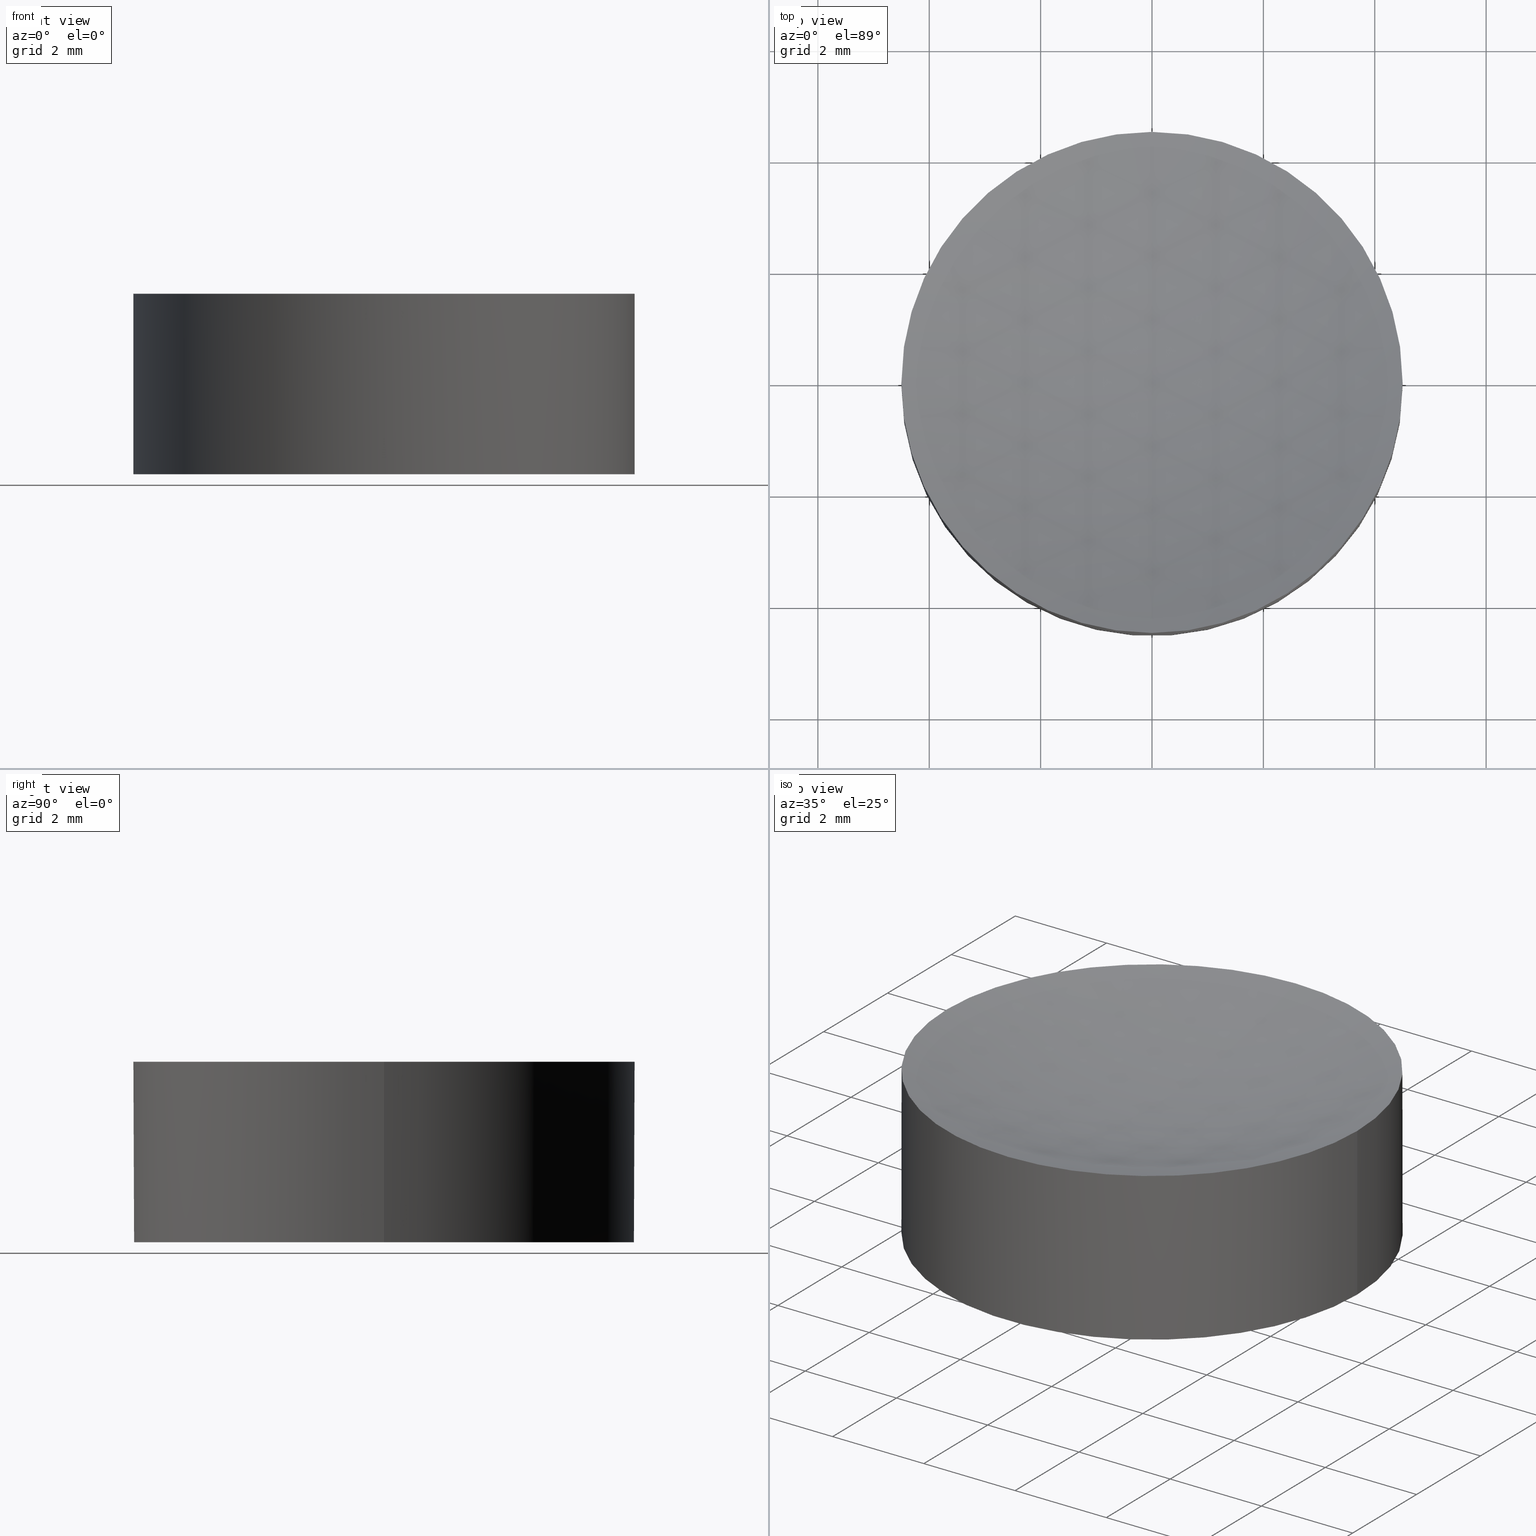
[diagram: canonical four-view strip — front | top / right | iso, engineering-drawing reading convention]
A machine part, canonical four-view strip (front | top / right | iso — engineering-drawing reading convention). The complete STEP part file that produces these views, byte-faithful:
ISO-10303-21;
HEADER;
FILE_DESCRIPTION (( 'STEP AP214' ),
    '1' );
FILE_NAME ('3427-E0W.STEP',
    '2009-12-23T16:30:17',
    ( 'Admin' ),
    ( 'Thorlabs, Inc.' ),
    'SwSTEP 2.0',
    'SolidWorks 2009',
    '' );
FILE_SCHEMA (( 'AUTOMOTIVE_DESIGN' ));
ENDSEC;

DATA;
#1 = DIRECTION ( 'NONE',  ( -0.0000000000000000000, -0.0000000000000000000, 1.000000000000000000 ) ) ;
#2 = DIRECTION ( 'NONE',  ( 1.000000000000000000, 0.0000000000000000000, 0.0000000000000000000 ) ) ;
#3 = MECHANICAL_DESIGN_GEOMETRIC_PRESENTATION_REPRESENTATION (  '', ( #5 ), #68 ) ;
#4 = PRESENTATION_LAYER_ASSIGNMENT (  '', '', ( #5 ) ) ;
#5 = STYLED_ITEM ( 'NONE', ( #6 ), #29 ) ;
#6 = PRESENTATION_STYLE_ASSIGNMENT (( #7 ) ) ;
#7 = SURFACE_STYLE_USAGE ( .BOTH. , #8 ) ;
#8 = SURFACE_SIDE_STYLE ('',( #9 ) ) ;
#9 = SURFACE_STYLE_FILL_AREA ( #10 ) ;
#10 = FILL_AREA_STYLE ('',( #54 ) ) ;
#11 = COLOUR_RGB ( '',1.000000000000000000, 1.000000000000000000, 1.000000000000000000 ) ;
#12 = FACE_OUTER_BOUND ( 'NONE', #30, .T. ) ;
#13 = DIRECTION ( 'NONE',  ( -1.224606353822377300E-016, -1.000000000000000000, 0.0000000000000000000 ) ) ;
#14 = DIRECTION ( 'NONE',  ( -1.000000000000000000, 1.224606353822377300E-016, 0.0000000000000000000 ) ) ;
#15 = CARTESIAN_POINT ( 'NONE',  ( 0.0000000000000000000, 0.0000000000000000000, 0.6007874015748031500 ) ) ;
#16 = AXIS2_PLACEMENT_3D ( 'NONE', #15, #14, #13 ) ;
#17 = ADVANCED_FACE ( 'NONE', ( #91 ), #59, .T. ) ;
#18 = EDGE_LOOP ( 'NONE', ( #19, #20, #21, #22, #23 ) ) ;
#19 = ORIENTED_EDGE ( 'NONE', *, *, #101, .F. ) ;
#20 = ORIENTED_EDGE ( 'NONE', *, *, #47, .T. ) ;
#21 = ORIENTED_EDGE ( 'NONE', *, *, #92, .T. ) ;
#22 = ORIENTED_EDGE ( 'NONE', *, *, #37, .F. ) ;
#23 = ORIENTED_EDGE ( 'NONE', *, *, #42, .F. ) ;
#24 = CLOSED_SHELL ( 'NONE', ( #104, #38, #29, #43, #17 ) ) ;
#25 = ORIENTED_EDGE ( 'NONE', *, *, #35, .T. ) ;
#26 = EDGE_CURVE ( 'NONE', #36, #32, #53, .T. ) ;
#27 = ORIENTED_EDGE ( 'NONE', *, *, #37, .T. ) ;
#28 = ORIENTED_EDGE ( 'NONE', *, *, #51, .T. ) ;
#29 = ADVANCED_FACE ( 'NONE', ( #12 ), #67, .F. ) ;
#30 = EDGE_LOOP ( 'NONE', ( #31, #25, #40, #41 ) ) ;
#31 = ORIENTED_EDGE ( 'NONE', *, *, #26, .F. ) ;
#32 = VERTEX_POINT ( 'NONE', #133 ) ;
#33 = ORIENTED_EDGE ( 'NONE', *, *, #35, .F. ) ;
#34 = ORIENTED_EDGE ( 'NONE', *, *, #26, .T. ) ;
#35 = EDGE_CURVE ( 'NONE', #36, #94, #162, .T. ) ;
#36 = VERTEX_POINT ( 'NONE', #145 ) ;
#37 = EDGE_CURVE ( 'NONE', #32, #50, #126, .T. ) ;
#38 = ADVANCED_FACE ( 'NONE', ( #119 ), #158, .F. ) ;
#39 = EDGE_LOOP ( 'NONE', ( #33, #34, #27, #28 ) ) ;
#40 = ORIENTED_EDGE ( 'NONE', *, *, #48, .T. ) ;
#41 = ORIENTED_EDGE ( 'NONE', *, *, #42, .T. ) ;
#42 = EDGE_CURVE ( 'NONE', #102, #32, #115, .T. ) ;
#43 = ADVANCED_FACE ( 'NONE', ( #110 ), #168, .F. ) ;
#44 = EDGE_LOOP ( 'NONE', ( #45, #46 ) ) ;
#45 = ORIENTED_EDGE ( 'NONE', *, *, #96, .F. ) ;
#46 = ORIENTED_EDGE ( 'NONE', *, *, #47, .F. ) ;
#47 = EDGE_CURVE ( 'NONE', #98, #97, #167, .T. ) ;
#48 = EDGE_CURVE ( 'NONE', #94, #102, #151, .T. ) ;
#49 = ORIENTED_EDGE ( 'NONE', *, *, #51, .F. ) ;
#50 = VERTEX_POINT ( 'NONE', #182 ) ;
#51 = EDGE_CURVE ( 'NONE', #50, #94, #181, .T. ) ;
#52 = ORIENTED_EDGE ( 'NONE', *, *, #92, .F. ) ;
#53 = CIRCLE ( 'NONE', #16, 0.5515748031496062700 ) ;
#54 = FILL_AREA_STYLE_COLOUR ( '', #11 ) ;
#55 = DIRECTION ( 'NONE',  ( 1.000000000000000000, 0.0000000000000000000, 0.0000000000000000000 ) ) ;
#56 = DIRECTION ( 'NONE',  ( -0.0000000000000000000, -0.0000000000000000000, 1.000000000000000000 ) ) ;
#57 = CARTESIAN_POINT ( 'NONE',  ( 0.0000000000000000000, 0.0000000000000000000, 0.3550060342688710600 ) ) ;
#58 = AXIS2_PLACEMENT_3D ( 'NONE', #57, #56, #55 ) ;
#59 = CYLINDRICAL_SURFACE ( 'NONE', #58, 0.1771653543307086800 ) ;
#60 =( GEOMETRIC_REPRESENTATION_CONTEXT ( 3 ) GLOBAL_UNCERTAINTY_ASSIGNED_CONTEXT ( ( #61 ) ) GLOBAL_UNIT_ASSIGNED_CONTEXT ( ( #77, #76, #62 ) ) REPRESENTATION_CONTEXT ( 'NONE', 'WORKASPACE' ) );
#61 = UNCERTAINTY_MEASURE_WITH_UNIT (LENGTH_MEASURE( 1.000000000000000100E-005 ), #77, 'distance_accuracy_value', 'NONE');
#62 =( NAMED_UNIT ( * ) SI_UNIT ( $, .STERADIAN. ) SOLID_ANGLE_UNIT ( ) );
#63 = DIRECTION ( 'NONE',  ( 0.0000000000000000000, 1.000000000000000000, 0.0000000000000000000 ) ) ;
#64 = DIRECTION ( 'NONE',  ( -1.000000000000000000, 0.0000000000000000000, 0.0000000000000000000 ) ) ;
#65 = CARTESIAN_POINT ( 'NONE',  ( 0.0000000000000000000, 0.0000000000000000000, 0.6007874015748031500 ) ) ;
#66 = AXIS2_PLACEMENT_3D ( 'NONE', #65, #64, #63 ) ;
#67 = SPHERICAL_SURFACE ( 'NONE', #66, 0.5515748031496062700 ) ;
#68 =( GEOMETRIC_REPRESENTATION_CONTEXT ( 3 ) GLOBAL_UNCERTAINTY_ASSIGNED_CONTEXT ( ( #69 ) ) GLOBAL_UNIT_ASSIGNED_CONTEXT ( ( #72, #71, #70 ) ) REPRESENTATION_CONTEXT ( 'NONE', 'WORKASPACE' ) );
#69 = UNCERTAINTY_MEASURE_WITH_UNIT (LENGTH_MEASURE( 1.000000000000000100E-005 ), #72, 'distance_accuracy_value', 'NONE');
#70 =( NAMED_UNIT ( * ) SI_UNIT ( $, .STERADIAN. ) SOLID_ANGLE_UNIT ( ) );
#71 =( NAMED_UNIT ( * ) PLANE_ANGLE_UNIT ( ) SI_UNIT ( $, .RADIAN. ) );
#72 =( CONVERSION_BASED_UNIT ( 'INCH', #73 ) LENGTH_UNIT ( ) NAMED_UNIT ( #74 ) );
#73 = LENGTH_MEASURE_WITH_UNIT ( LENGTH_MEASURE( 0.02539999999999999900 ), #75 );
#74 = DIMENSIONAL_EXPONENTS ( 1.000000000000000000, 0.0000000000000000000, 0.0000000000000000000, 0.0000000000000000000, 0.0000000000000000000, 0.0000000000000000000, 0.0000000000000000000 ) ;
#75 =( LENGTH_UNIT ( ) NAMED_UNIT ( * ) SI_UNIT ( $, .METRE. ) );
#76 =( NAMED_UNIT ( * ) PLANE_ANGLE_UNIT ( ) SI_UNIT ( $, .RADIAN. ) );
#77 =( CONVERSION_BASED_UNIT ( 'INCH', #78 ) LENGTH_UNIT ( ) NAMED_UNIT ( #79 ) );
#78 = LENGTH_MEASURE_WITH_UNIT ( LENGTH_MEASURE( 0.02539999999999999900 ), #80 );
#79 = DIMENSIONAL_EXPONENTS ( 1.000000000000000000, 0.0000000000000000000, 0.0000000000000000000, 0.0000000000000000000, 0.0000000000000000000, 0.0000000000000000000, 0.0000000000000000000 ) ;
#80 =( LENGTH_UNIT ( ) NAMED_UNIT ( * ) SI_UNIT ( $, .METRE. ) );
#81 = MECHANICAL_DESIGN_GEOMETRIC_PRESENTATION_REPRESENTATION (  '', ( #83 ), #60 ) ;
#82 = PRESENTATION_LAYER_ASSIGNMENT (  '', '', ( #83 ) ) ;
#83 = STYLED_ITEM ( 'NONE', ( #84 ), #17 ) ;
#84 = PRESENTATION_STYLE_ASSIGNMENT (( #85 ) ) ;
#85 = SURFACE_STYLE_USAGE ( .BOTH. , #86 ) ;
#86 = SURFACE_SIDE_STYLE ('',( #87 ) ) ;
#87 = SURFACE_STYLE_FILL_AREA ( #88 ) ;
#88 = FILL_AREA_STYLE ('',( #89 ) ) ;
#89 = FILL_AREA_STYLE_COLOUR ( '', #90 ) ;
#90 = COLOUR_RGB ( '',1.000000000000000000, 1.000000000000000000, 1.000000000000000000 ) ;
#91 = FACE_OUTER_BOUND ( 'NONE', #18, .T. ) ;
#92 = EDGE_CURVE ( 'NONE', #97, #50, #187, .T. ) ;
#93 = ORIENTED_EDGE ( 'NONE', *, *, #48, .F. ) ;
#94 = VERTEX_POINT ( 'NONE', #251 ) ;
#95 = ORIENTED_EDGE ( 'NONE', *, *, #96, .T. ) ;
#96 = EDGE_CURVE ( 'NONE', #97, #98, #250, .T. ) ;
#97 = VERTEX_POINT ( 'NONE', #188 ) ;
#98 = VERTEX_POINT ( 'NONE', #201 ) ;
#99 = EDGE_LOOP ( 'NONE', ( #95, #100, #93, #49, #52 ) ) ;
#100 = ORIENTED_EDGE ( 'NONE', *, *, #101, .T. ) ;
#101 = EDGE_CURVE ( 'NONE', #98, #102, #229, .T. ) ;
#102 = VERTEX_POINT ( 'NONE', #260 ) ;
#103 = MANIFOLD_SOLID_BREP ( 'NONE', #24 ) ;
#104 = ADVANCED_FACE ( 'NONE', ( #258 ), #198, .T. ) ;
#105 =( NAMED_UNIT ( * ) PLANE_ANGLE_UNIT ( ) SI_UNIT ( $, .RADIAN. ) );
#106 =( CONVERSION_BASED_UNIT ( 'INCH', #107 ) LENGTH_UNIT ( ) NAMED_UNIT ( #108 ) );
#107 = LENGTH_MEASURE_WITH_UNIT ( LENGTH_MEASURE( 0.02539999999999999900 ), #136 );
#108 = DIMENSIONAL_EXPONENTS ( 1.000000000000000000, 0.0000000000000000000, 0.0000000000000000000, 0.0000000000000000000, 0.0000000000000000000, 0.0000000000000000000, 0.0000000000000000000 ) ;
#109 = COLOUR_RGB ( '',1.000000000000000000, 1.000000000000000000, 1.000000000000000000 ) ;
#110 = FACE_OUTER_BOUND ( 'NONE', #44, .T. ) ;
#111 = DIRECTION ( 'NONE',  ( 1.000000000000000000, 0.0000000000000000000, 0.0000000000000000000 ) ) ;
#112 = DIRECTION ( 'NONE',  ( -0.0000000000000000000, -0.0000000000000000000, 1.000000000000000000 ) ) ;
#113 = CARTESIAN_POINT ( 'NONE',  ( 0.0000000000000000000, 0.0000000000000000000, 0.07843962404109772200 ) ) ;
#114 = AXIS2_PLACEMENT_3D ( 'NONE', #113, #112, #111 ) ;
#115 = CIRCLE ( 'NONE', #114, 0.1771653543307086800 ) ;
#116 = FILL_AREA_STYLE_COLOUR ( '', #109 ) ;
#117 = CARTESIAN_POINT ( 'NONE',  ( 0.0000000000000000000, 0.0000000000000000000, 0.07843962404109772200 ) ) ;
#118 = AXIS2_PLACEMENT_3D ( 'NONE', #117, #132, #131 ) ;
#119 = FACE_OUTER_BOUND ( 'NONE', #39, .T. ) ;
#120 = PRESENTATION_LAYER_ASSIGNMENT (  '', '', ( #121 ) ) ;
#121 = STYLED_ITEM ( 'NONE', ( #122 ), #38 ) ;
#122 = PRESENTATION_STYLE_ASSIGNMENT (( #123 ) ) ;
#123 = SURFACE_STYLE_USAGE ( .BOTH. , #172 ) ;
#124 = DIRECTION ( 'NONE',  ( 0.0000000000000000000, 0.0000000000000000000, -1.000000000000000000 ) ) ;
#125 = DIRECTION ( 'NONE',  ( 1.000000000000000000, 0.0000000000000000000, 0.0000000000000000000 ) ) ;
#126 = CIRCLE ( 'NONE', #118, 0.1771653543307086800 ) ;
#127 = DIMENSIONAL_EXPONENTS ( 1.000000000000000000, 0.0000000000000000000, 0.0000000000000000000, 0.0000000000000000000, 0.0000000000000000000, 0.0000000000000000000, 0.0000000000000000000 ) ;
#128 =( NAMED_UNIT ( * ) SI_UNIT ( $, .STERADIAN. ) SOLID_ANGLE_UNIT ( ) );
#129 =( NAMED_UNIT ( * ) PLANE_ANGLE_UNIT ( ) SI_UNIT ( $, .RADIAN. ) );
#130 = FILL_AREA_STYLE_COLOUR ( '', #175 ) ;
#131 = DIRECTION ( 'NONE',  ( 1.000000000000000000, 0.0000000000000000000, 0.0000000000000000000 ) ) ;
#132 = DIRECTION ( 'NONE',  ( -0.0000000000000000000, -0.0000000000000000000, 1.000000000000000000 ) ) ;
#133 = CARTESIAN_POINT ( 'NONE',  ( -2.169578185905786800E-017, -0.1771653543307086800, 0.07843962404109772200 ) ) ;
#134 =( LENGTH_UNIT ( ) NAMED_UNIT ( * ) SI_UNIT ( $, .METRE. ) );
#135 = MECHANICAL_DESIGN_GEOMETRIC_PRESENTATION_REPRESENTATION (  '', ( #121 ), #159 ) ;
#136 =( LENGTH_UNIT ( ) NAMED_UNIT ( * ) SI_UNIT ( $, .METRE. ) );
#137 = MECHANICAL_DESIGN_GEOMETRIC_PRESENTATION_REPRESENTATION (  '', ( #139 ), #169 ) ;
#138 = PRESENTATION_LAYER_ASSIGNMENT (  '', '', ( #139 ) ) ;
#139 = STYLED_ITEM ( 'NONE', ( #140 ), #43 ) ;
#140 = PRESENTATION_STYLE_ASSIGNMENT (( #141 ) ) ;
#141 = SURFACE_STYLE_USAGE ( .BOTH. , #142 ) ;
#142 = SURFACE_SIDE_STYLE ('',( #143 ) ) ;
#143 = SURFACE_STYLE_FILL_AREA ( #144 ) ;
#144 = FILL_AREA_STYLE ('',( #116 ) ) ;
#145 = CARTESIAN_POINT ( 'NONE',  ( 0.0000000000000000000, 3.377310042726673900E-017, 0.04921259842519682500 ) ) ;
#146 = DIRECTION ( 'NONE',  ( 0.0000000000000000000, 1.000000000000000000, 0.0000000000000000000 ) ) ;
#147 = DIRECTION ( 'NONE',  ( -1.000000000000000000, 0.0000000000000000000, 0.0000000000000000000 ) ) ;
#148 = AXIS2_PLACEMENT_3D ( 'NONE', #157, #147, #146 ) ;
#149 = CARTESIAN_POINT ( 'NONE',  ( 0.0000000000000000000, 0.0000000000000000000, 0.07843962404109772200 ) ) ;
#150 = AXIS2_PLACEMENT_3D ( 'NONE', #149, #1, #2 ) ;
#151 = CIRCLE ( 'NONE', #150, 0.1771653543307086800 ) ;
#152 = DIRECTION ( 'NONE',  ( 1.000000000000000000, 0.0000000000000000000, 0.0000000000000000000 ) ) ;
#153 = DIRECTION ( 'NONE',  ( -0.0000000000000000000, -0.0000000000000000000, 1.000000000000000000 ) ) ;
#154 = CARTESIAN_POINT ( 'NONE',  ( 0.0000000000000000000, 0.0000000000000000000, -0.04921259842519682500 ) ) ;
#155 = AXIS2_PLACEMENT_3D ( 'NONE', #154, #153, #152 ) ;
#156 = DIRECTION ( 'NONE',  ( 1.000000000000000000, 0.0000000000000000000, 0.0000000000000000000 ) ) ;
#157 = CARTESIAN_POINT ( 'NONE',  ( 0.0000000000000000000, 0.0000000000000000000, 0.6007874015748031500 ) ) ;
#158 = SPHERICAL_SURFACE ( 'NONE', #148, 0.5515748031496062700 ) ;
#159 =( GEOMETRIC_REPRESENTATION_CONTEXT ( 3 ) GLOBAL_UNCERTAINTY_ASSIGNED_CONTEXT ( ( #163 ) ) GLOBAL_UNIT_ASSIGNED_CONTEXT ( ( #176, #129, #128 ) ) REPRESENTATION_CONTEXT ( 'NONE', 'WORKASPACE' ) );
#160 = CARTESIAN_POINT ( 'NONE',  ( 0.0000000000000000000, 0.0000000000000000000, 0.6007874015748031500 ) ) ;
#161 = AXIS2_PLACEMENT_3D ( 'NONE', #160, #125, #124 ) ;
#162 = CIRCLE ( 'NONE', #161, 0.5515748031496062700 ) ;
#163 = UNCERTAINTY_MEASURE_WITH_UNIT (LENGTH_MEASURE( 1.000000000000000100E-005 ), #176, 'distance_accuracy_value', 'NONE');
#164 = DIRECTION ( 'NONE',  ( 0.0000000000000000000, -0.0000000000000000000, 1.000000000000000000 ) ) ;
#165 = CARTESIAN_POINT ( 'NONE',  ( 0.0000000000000000000, 1.808041534174241900E-017, -0.04921259842519685300 ) ) ;
#166 = AXIS2_PLACEMENT_3D ( 'NONE', #165, #164, #156 ) ;
#167 = CIRCLE ( 'NONE', #155, 0.1771653543307086500 ) ;
#168 = PLANE ( 'NONE',  #166 ) ;
#169 =( GEOMETRIC_REPRESENTATION_CONTEXT ( 3 ) GLOBAL_UNCERTAINTY_ASSIGNED_CONTEXT ( ( #170 ) ) GLOBAL_UNIT_ASSIGNED_CONTEXT ( ( #106, #105, #171 ) ) REPRESENTATION_CONTEXT ( 'NONE', 'WORKASPACE' ) );
#170 = UNCERTAINTY_MEASURE_WITH_UNIT (LENGTH_MEASURE( 1.000000000000000100E-005 ), #106, 'distance_accuracy_value', 'NONE');
#171 =( NAMED_UNIT ( * ) SI_UNIT ( $, .STERADIAN. ) SOLID_ANGLE_UNIT ( ) );
#172 = SURFACE_SIDE_STYLE ('',( #173 ) ) ;
#173 = SURFACE_STYLE_FILL_AREA ( #174 ) ;
#174 = FILL_AREA_STYLE ('',( #130 ) ) ;
#175 = COLOUR_RGB ( '',1.000000000000000000, 1.000000000000000000, 1.000000000000000000 ) ;
#176 =( CONVERSION_BASED_UNIT ( 'INCH', #177 ) LENGTH_UNIT ( ) NAMED_UNIT ( #127 ) );
#177 = LENGTH_MEASURE_WITH_UNIT ( LENGTH_MEASURE( 0.02539999999999999900 ), #134 );
#178 = DIRECTION ( 'NONE',  ( -0.0000000000000000000, -0.0000000000000000000, 1.000000000000000000 ) ) ;
#179 = VECTOR ( 'NONE', #178, 39.37007874015748100 ) ;
#180 = CARTESIAN_POINT ( 'NONE',  ( 0.1771653543307086800, 0.0000000000000000000, 0.3550060342688710600 ) ) ;
#181 = CIRCLE ( 'NONE', #186, 0.1771653543307086800 ) ;
#182 = CARTESIAN_POINT ( 'NONE',  ( 0.1771653543307086800, 0.0000000000000000000, 0.07843962404109772200 ) ) ;
#183 = DIRECTION ( 'NONE',  ( 1.000000000000000000, 0.0000000000000000000, 0.0000000000000000000 ) ) ;
#184 = DIRECTION ( 'NONE',  ( -0.0000000000000000000, -0.0000000000000000000, 1.000000000000000000 ) ) ;
#185 = CARTESIAN_POINT ( 'NONE',  ( 0.0000000000000000000, 0.0000000000000000000, 0.07843962404109772200 ) ) ;
#186 = AXIS2_PLACEMENT_3D ( 'NONE', #185, #184, #183 ) ;
#187 = LINE ( 'NONE', #180, #179 ) ;
#188 = CARTESIAN_POINT ( 'NONE',  ( 0.1771653543307086500, 0.0000000000000000000, -0.04921259842519682500 ) ) ;
#189 = DIRECTION ( 'NONE',  ( 0.0000000000000000000, 0.0000000000000000000, 1.000000000000000000 ) ) ;
#190 = CARTESIAN_POINT ( 'NONE',  ( 0.0000000000000000000, 0.0000000000000000000, 0.0000000000000000000 ) ) ;
#191 = DIRECTION ( 'NONE',  ( 1.000000000000000000, 0.0000000000000000000, 0.0000000000000000000 ) ) ;
#192 =( NAMED_UNIT ( * ) SI_UNIT ( $, .STERADIAN. ) SOLID_ANGLE_UNIT ( ) );
#193 = SURFACE_STYLE_FILL_AREA ( #194 ) ;
#194 = FILL_AREA_STYLE ('',( #195 ) ) ;
#195 = FILL_AREA_STYLE_COLOUR ( '', #231 ) ;
#196 = DIMENSIONAL_EXPONENTS ( 1.000000000000000000, 0.0000000000000000000, 0.0000000000000000000, 0.0000000000000000000, 0.0000000000000000000, 0.0000000000000000000, 0.0000000000000000000 ) ;
#197 =( LENGTH_UNIT ( ) NAMED_UNIT ( * ) SI_UNIT ( $, .METRE. ) );
#198 = CYLINDRICAL_SURFACE ( 'NONE', #208, 0.1771653543307086800 ) ;
#199 =( LENGTH_UNIT ( ) NAMED_UNIT ( * ) SI_UNIT ( $, .METRE. ) );
#200 = AXIS2_PLACEMENT_3D ( 'NONE', #190, #189, #191 ) ;
#201 = CARTESIAN_POINT ( 'NONE',  ( -0.1771653543307086500, 2.169578185905786500E-017, -0.04921259842519682500 ) ) ;
#202 =( CONVERSION_BASED_UNIT ( 'INCH', #253 ) LENGTH_UNIT ( ) NAMED_UNIT ( #245 ) );
#203 =( CONVERSION_BASED_UNIT ( 'INCH', #204 ) LENGTH_UNIT ( ) NAMED_UNIT ( #233 ) );
#204 = LENGTH_MEASURE_WITH_UNIT ( LENGTH_MEASURE( 0.02539999999999999900 ), #234 );
#205 = LENGTH_MEASURE_WITH_UNIT ( LENGTH_MEASURE( 0.02539999999999999900 ), #197 );
#206 = DIRECTION ( 'NONE',  ( -0.0000000000000000000, -0.0000000000000000000, 1.000000000000000000 ) ) ;
#207 = CARTESIAN_POINT ( 'NONE',  ( 0.0000000000000000000, 0.0000000000000000000, 0.3550060342688710600 ) ) ;
#208 = AXIS2_PLACEMENT_3D ( 'NONE', #207, #206, #213 ) ;
#209 =( NAMED_UNIT ( * ) SI_UNIT ( $, .STERADIAN. ) SOLID_ANGLE_UNIT ( ) );
#210 = LENGTH_MEASURE_WITH_UNIT ( LENGTH_MEASURE( 0.02539999999999999900 ), #199 );
#211 = DIMENSIONAL_EXPONENTS ( 1.000000000000000000, 0.0000000000000000000, 0.0000000000000000000, 0.0000000000000000000, 0.0000000000000000000, 0.0000000000000000000, 0.0000000000000000000 ) ;
#212 = UNCERTAINTY_MEASURE_WITH_UNIT (LENGTH_MEASURE( 1.000000000000000100E-005 ), #202, 'distance_accuracy_value', 'NONE');
#213 = DIRECTION ( 'NONE',  ( 1.000000000000000000, 0.0000000000000000000, 0.0000000000000000000 ) ) ;
#214 = PRESENTATION_LAYER_ASSIGNMENT (  '', '', ( #215 ) ) ;
#215 = STYLED_ITEM ( 'NONE', ( #216 ), #247 ) ;
#216 = PRESENTATION_STYLE_ASSIGNMENT (( #217 ) ) ;
#217 = SURFACE_STYLE_USAGE ( .BOTH. , #218 ) ;
#218 = SURFACE_SIDE_STYLE ('',( #219 ) ) ;
#219 = SURFACE_STYLE_FILL_AREA ( #220 ) ;
#220 = FILL_AREA_STYLE ('',( #221 ) ) ;
#221 = FILL_AREA_STYLE_COLOUR ( '', #222 ) ;
#222 = COLOUR_RGB ( '',0.7529411764705882200, 0.7529411764705882200, 0.7529411764705882200 ) ;
#223 =( GEOMETRIC_REPRESENTATION_CONTEXT ( 3 ) GLOBAL_UNCERTAINTY_ASSIGNED_CONTEXT ( ( #224 ) ) GLOBAL_UNIT_ASSIGNED_CONTEXT ( ( #203, #244, #243 ) ) REPRESENTATION_CONTEXT ( 'NONE', 'WORKASPACE' ) );
#224 = UNCERTAINTY_MEASURE_WITH_UNIT (LENGTH_MEASURE( 1.000000000000000100E-005 ), #203, 'distance_accuracy_value', 'NONE');
#225 = CARTESIAN_POINT ( 'NONE',  ( 0.0000000000000000000, 0.0000000000000000000, -0.04921259842519682500 ) ) ;
#226 = DIRECTION ( 'NONE',  ( -0.0000000000000000000, -0.0000000000000000000, 1.000000000000000000 ) ) ;
#227 = CARTESIAN_POINT ( 'NONE',  ( -0.1771653543307086800, 2.169578185905786800E-017, 0.3550060342688710600 ) ) ;
#228 =( GEOMETRIC_REPRESENTATION_CONTEXT ( 3 ) GLOBAL_UNCERTAINTY_ASSIGNED_CONTEXT ( ( #248 ) ) GLOBAL_UNIT_ASSIGNED_CONTEXT ( ( #237, #236, #254 ) ) REPRESENTATION_CONTEXT ( 'NONE', 'WORKASPACE' ) );
#229 = LINE ( 'NONE', #227, #232 ) ;
#230 = DIRECTION ( 'NONE',  ( 1.000000000000000000, 0.0000000000000000000, 0.0000000000000000000 ) ) ;
#231 = COLOUR_RGB ( '',0.7529411764705882200, 0.7529411764705882200, 0.7529411764705882200 ) ;
#232 = VECTOR ( 'NONE', #226, 39.37007874015748100 ) ;
#233 = DIMENSIONAL_EXPONENTS ( 1.000000000000000000, 0.0000000000000000000, 0.0000000000000000000, 0.0000000000000000000, 0.0000000000000000000, 0.0000000000000000000, 0.0000000000000000000 ) ;
#234 =( LENGTH_UNIT ( ) NAMED_UNIT ( * ) SI_UNIT ( $, .METRE. ) );
#235 = MECHANICAL_DESIGN_GEOMETRIC_PRESENTATION_REPRESENTATION (  '', ( #215 ), #223 ) ;
#236 =( NAMED_UNIT ( * ) PLANE_ANGLE_UNIT ( ) SI_UNIT ( $, .RADIAN. ) );
#237 =( CONVERSION_BASED_UNIT ( 'INCH', #205 ) LENGTH_UNIT ( ) NAMED_UNIT ( #196 ) );
#238 =( NAMED_UNIT ( * ) PLANE_ANGLE_UNIT ( ) SI_UNIT ( $, .RADIAN. ) );
#239 =( CONVERSION_BASED_UNIT ( 'INCH', #210 ) LENGTH_UNIT ( ) NAMED_UNIT ( #211 ) );
#240 =( GEOMETRIC_REPRESENTATION_CONTEXT ( 3 ) GLOBAL_UNCERTAINTY_ASSIGNED_CONTEXT ( ( #259 ) ) GLOBAL_UNIT_ASSIGNED_CONTEXT ( ( #239, #238, #192 ) ) REPRESENTATION_CONTEXT ( 'NONE', 'WORKASPACE' ) );
#241 = MECHANICAL_DESIGN_GEOMETRIC_PRESENTATION_REPRESENTATION (  '', ( #268 ), #228 ) ;
#242 = PRESENTATION_LAYER_ASSIGNMENT (  '', '', ( #268 ) ) ;
#243 =( NAMED_UNIT ( * ) SI_UNIT ( $, .STERADIAN. ) SOLID_ANGLE_UNIT ( ) );
#244 =( NAMED_UNIT ( * ) PLANE_ANGLE_UNIT ( ) SI_UNIT ( $, .RADIAN. ) );
#245 = DIMENSIONAL_EXPONENTS ( 1.000000000000000000, 0.0000000000000000000, 0.0000000000000000000, 0.0000000000000000000, 0.0000000000000000000, 0.0000000000000000000, 0.0000000000000000000 ) ;
#246 =( LENGTH_UNIT ( ) NAMED_UNIT ( * ) SI_UNIT ( $, .METRE. ) );
#247 = ADVANCED_BREP_SHAPE_REPRESENTATION ( '3427-E0W', ( #103, #200 ), #240 ) ;
#248 = UNCERTAINTY_MEASURE_WITH_UNIT (LENGTH_MEASURE( 1.000000000000000100E-005 ), #237, 'distance_accuracy_value', 'NONE');
#249 = AXIS2_PLACEMENT_3D ( 'NONE', #225, #273, #230 ) ;
#250 = CIRCLE ( 'NONE', #249, 0.1771653543307086500 ) ;
#251 = CARTESIAN_POINT ( 'NONE',  ( 0.0000000000000000000, 0.1771653543307086800, 0.07843962404109772200 ) ) ;
#252 =( NAMED_UNIT ( * ) PLANE_ANGLE_UNIT ( ) SI_UNIT ( $, .RADIAN. ) );
#253 = LENGTH_MEASURE_WITH_UNIT ( LENGTH_MEASURE( 0.02539999999999999900 ), #246 );
#254 =( NAMED_UNIT ( * ) SI_UNIT ( $, .STERADIAN. ) SOLID_ANGLE_UNIT ( ) );
#255 = FILL_AREA_STYLE ('',( #256 ) ) ;
#256 = FILL_AREA_STYLE_COLOUR ( '', #257 ) ;
#257 = COLOUR_RGB ( '',1.000000000000000000, 1.000000000000000000, 1.000000000000000000 ) ;
#258 = FACE_OUTER_BOUND ( 'NONE', #99, .T. ) ;
#259 = UNCERTAINTY_MEASURE_WITH_UNIT (LENGTH_MEASURE( 1.000000000000000100E-005 ), #239, 'distance_accuracy_value', 'NONE');
#260 = CARTESIAN_POINT ( 'NONE',  ( -0.1771653543307086800, 2.169578185905786800E-017, 0.07843962404109772200 ) ) ;
#261 = PRESENTATION_STYLE_ASSIGNMENT (( #262 ) ) ;
#262 = SURFACE_STYLE_USAGE ( .BOTH. , #263 ) ;
#263 = SURFACE_SIDE_STYLE ('',( #193 ) ) ;
#264 = MECHANICAL_DESIGN_GEOMETRIC_PRESENTATION_REPRESENTATION (  '', ( #266 ), #267 ) ;
#265 = PRESENTATION_LAYER_ASSIGNMENT (  '', '', ( #266 ) ) ;
#266 = STYLED_ITEM ( 'NONE', ( #261 ), #103 ) ;
#267 =( GEOMETRIC_REPRESENTATION_CONTEXT ( 3 ) GLOBAL_UNCERTAINTY_ASSIGNED_CONTEXT ( ( #212 ) ) GLOBAL_UNIT_ASSIGNED_CONTEXT ( ( #202, #252, #209 ) ) REPRESENTATION_CONTEXT ( 'NONE', 'WORKASPACE' ) );
#268 = STYLED_ITEM ( 'NONE', ( #269 ), #104 ) ;
#269 = PRESENTATION_STYLE_ASSIGNMENT (( #270 ) ) ;
#270 = SURFACE_STYLE_USAGE ( .BOTH. , #271 ) ;
#271 = SURFACE_SIDE_STYLE ('',( #272 ) ) ;
#272 = SURFACE_STYLE_FILL_AREA ( #255 ) ;
#273 = DIRECTION ( 'NONE',  ( -0.0000000000000000000, -0.0000000000000000000, 1.000000000000000000 ) ) ;
#274 = PRODUCT_DEFINITION ( 'UNKNOWN', '', #281, #275 ) ;
#275 = PRODUCT_DEFINITION_CONTEXT ( 'detailed design', #278, 'design' ) ;
#276 = PRODUCT_DEFINITION_SHAPE ( 'NONE', 'NONE',  #274 ) ;
#277 = APPLICATION_PROTOCOL_DEFINITION ( 'draft international standard', 'automotive_design', 1998, #278 ) ;
#278 = APPLICATION_CONTEXT ( 'automotive_design' ) ;
#279 = PRODUCT ( '3427-E0W', '3427-E0W', '', ( #284 ) ) ;
#280 = PRODUCT_RELATED_PRODUCT_CATEGORY ( 'part', '', ( #279 ) ) ;
#281 = PRODUCT_DEFINITION_FORMATION_WITH_SPECIFIED_SOURCE ( 'ANY', '', #279, .NOT_KNOWN. ) ;
#282 = SHAPE_DEFINITION_REPRESENTATION ( #276, #247 ) ;
#283 = APPLICATION_CONTEXT ( 'automotive_design' ) ;
#284 = PRODUCT_CONTEXT ( 'NONE', #283, 'mechanical' ) ;
#285 = APPLICATION_PROTOCOL_DEFINITION ( 'draft international standard', 'automotive_design', 1998, #283 ) ;
ENDSEC;
END-ISO-10303-21;
